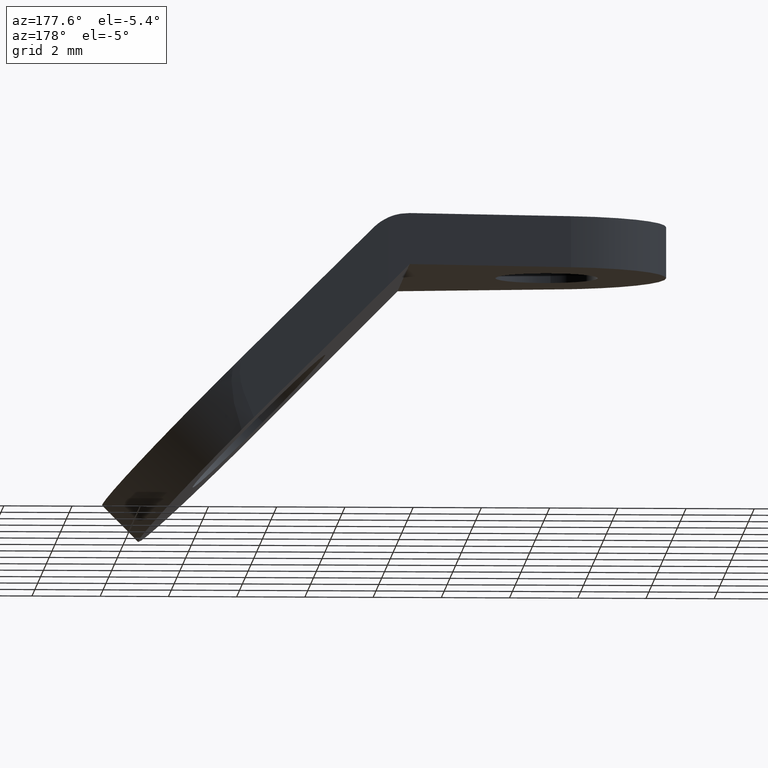
[diagram: clean part render]
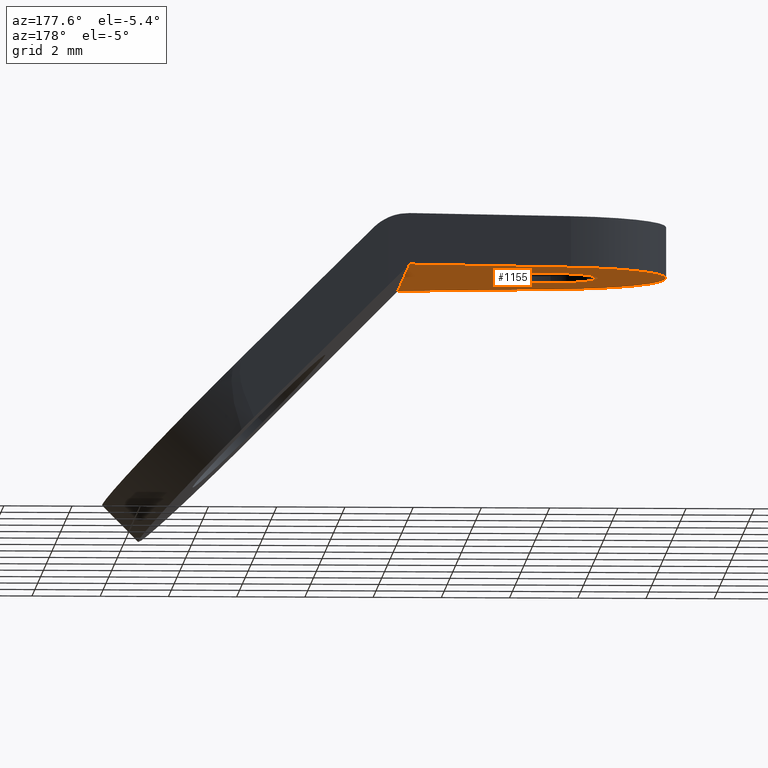
[diagram: same view with one face highlighted and labeled with its STEP entity id]
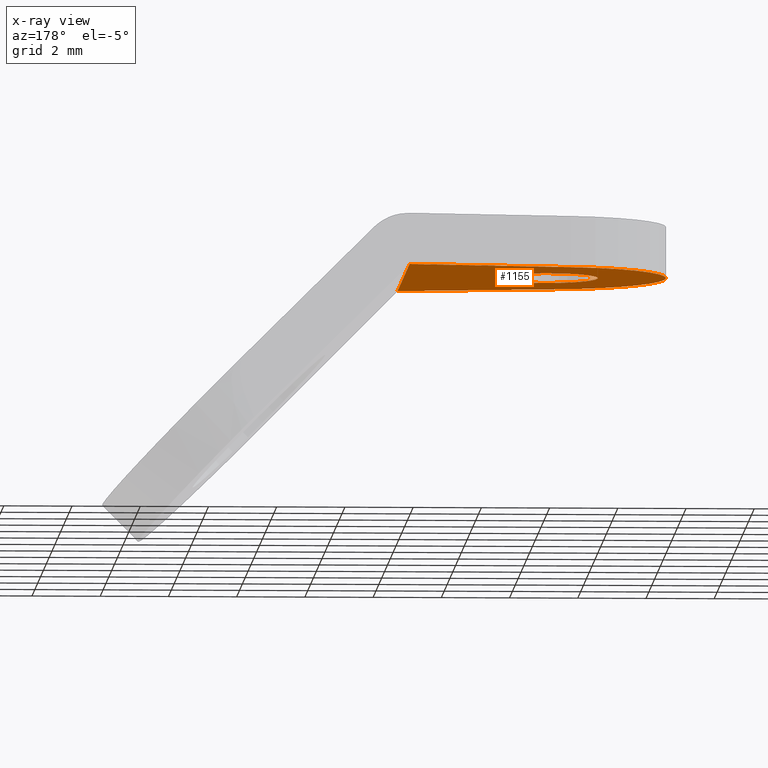
[diagram: x-ray of the same camera — body ghosted, the highlighted face saturated]
A machine part, auxiliary view. The second image highlights one B-rep face of the part: STEP entity #1155.
The next image is the same camera in x-ray: the body ghosted, the highlighted face saturated — about 0% of this face is hidden behind the body in this view.
In plain terms, the highlighted face is a freeform B-spline surface patch.
Its self-contained STEP definition (entity closure, byte-faithful):
#290=CARTESIAN_POINT('',(3.591572396663350,1.497202222870765,-1.499999999999946));
#291=VERTEX_POINT('',#290);
#297=CARTESIAN_POINT('',(5.0,0.0,-1.499999999999946));
#298=VERTEX_POINT('',#297);
#299=CARTESIAN_POINT('',(5.0,0.0,-1.499999999999946));
#300=CARTESIAN_POINT('',(5.0,1.411059879606823,-1.499999999999947));
#301=CARTESIAN_POINT('',(3.591572396663350,1.497202222870765,-1.499999999999946));
#309=(BOUNDED_CURVE()B_SPLINE_CURVE(2,(#299,#300,#301),.UNSPECIFIED.,.F.,.U.)B_SPLINE_CURVE_WITH_KNOTS((3,3),(0.500000000000000,0.739333057352074),.UNSPECIFIED.)CURVE()GEOMETRIC_REPRESENTATION_ITEM()RATIONAL_B_SPLINE_CURVE((1.0,0.719603881854746,0.976072245512347))REPRESENTATION_ITEM(''));
#310=EDGE_CURVE('',#298,#291,#309,.T.);
#312=CARTESIAN_POINT('',(3.322948647998651,-1.489514289543573,-1.499999999999946));
#313=VERTEX_POINT('',#312);
#314=CARTESIAN_POINT('',(3.322948647998651,-1.489514289543572,-1.499999999999946));
#315=CARTESIAN_POINT('',(3.411163820505752,-1.500000000000000,-1.499999999999946));
#316=CARTESIAN_POINT('',(3.500000000000000,-1.500000000000000,-1.499999999999946));
#317=CARTESIAN_POINT('',(5.000000000000001,-1.500000000000000,-1.499999999999946));
#318=CARTESIAN_POINT('',(5.0,0.0,-1.499999999999946));
#326=(BOUNDED_CURVE()B_SPLINE_CURVE(2,(#314,#315,#316,#317,#318),.UNSPECIFIED.,.F.,.U.)B_SPLINE_CURVE_WITH_KNOTS((3,2,3),(0.229562473511965,0.250000000000000,0.500000000000000),.UNSPECIFIED.)CURVE()GEOMETRIC_REPRESENTATION_ITEM()RATIONAL_B_SPLINE_CURVE((0.956026754180675,0.976055948329338,1.0,0.707106781186548,1.0))REPRESENTATION_ITEM(''));
#327=EDGE_CURVE('',#313,#298,#326,.T.);
#371=CARTESIAN_POINT('',(2.0,0.0,-1.499999999999946));
#372=VERTEX_POINT('',#371);
#373=CARTESIAN_POINT('',(2.0,0.0,-1.499999999999946));
#374=CARTESIAN_POINT('',(2.0,-1.332261788897848,-1.499999999999947));
#375=CARTESIAN_POINT('',(3.322948647998651,-1.489514289543573,-1.499999999999945));
#383=(BOUNDED_CURVE()B_SPLINE_CURVE(2,(#373,#374,#375),.UNSPECIFIED.,.F.,.U.)B_SPLINE_CURVE_WITH_KNOTS((3,3),(0.0,0.229562473511965),.UNSPECIFIED.)CURVE()GEOMETRIC_REPRESENTATION_ITEM()RATIONAL_B_SPLINE_CURVE((1.0,0.731050832857210,0.956026754180675))REPRESENTATION_ITEM(''));
#384=EDGE_CURVE('',#372,#313,#383,.T.);
#386=CARTESIAN_POINT('',(3.591572396663350,1.497202222870765,-1.499999999999946));
#387=CARTESIAN_POINT('',(3.545828731151959,1.500000000000000,-1.499999999999946));
#388=CARTESIAN_POINT('',(3.500000000000000,1.500000000000000,-1.499999999999946));
#389=CARTESIAN_POINT('',(2.000000000000000,1.500000000000000,-1.499999999999946));
#390=CARTESIAN_POINT('',(2.0,0.0,-1.499999999999946));
#398=(BOUNDED_CURVE()B_SPLINE_CURVE(2,(#386,#387,#388,#389,#390),.UNSPECIFIED.,.F.,.U.)B_SPLINE_CURVE_WITH_KNOTS((3,2,3),(0.739333057352074,0.750000000000000,1.0),.UNSPECIFIED.)CURVE()GEOMETRIC_REPRESENTATION_ITEM()RATIONAL_B_SPLINE_CURVE((0.976072245512348,0.987502899331802,1.0,0.707106781186548,1.0))REPRESENTATION_ITEM(''));
#399=EDGE_CURVE('',#291,#372,#398,.T.);
#1054=CARTESIAN_POINT('',(2.930047951796130,3.453281322138420,-1.499999999999946));
#1055=VERTEX_POINT('',#1054);
#1061=CARTESIAN_POINT('',(2.930046000000000,-3.453281000000000,-1.499999999999946));
#1062=VERTEX_POINT('',#1061);
#1063=CARTESIAN_POINT('',(2.930047951796130,3.453281322138419,-1.499999999999946));
#1064=CARTESIAN_POINT('',(0.000003271817115,2.969685594343231,-1.499999999999947));
#1065=CARTESIAN_POINT('',(0.000002432583590,0.000000989100716,-1.499999999999946));
#1066=CARTESIAN_POINT('',(0.000001593350063,-2.969683616141795,-1.499999999999947));
#1067=CARTESIAN_POINT('',(2.930046000000000,-3.453281000000000,-1.499999999999946));
#1075=(BOUNDED_CURVE()B_SPLINE_CURVE(2,(#1063,#1064,#1065,#1066,#1067),.UNSPECIFIED.,.F.,.U.)B_SPLINE_CURVE_WITH_KNOTS((3,2,3),(0.0,0.500000000000000,1.0),.UNSPECIFIED.)CURVE()GEOMETRIC_REPRESENTATION_ITEM()RATIONAL_B_SPLINE_CURVE((1.0,0.762510464254694,1.0,0.762510464254694,1.0))REPRESENTATION_ITEM(''));
#1076=EDGE_CURVE('',#1055,#1062,#1075,.T.);
#1091=CARTESIAN_POINT('',(7.692386999999870,-4.239292140935910,-1.500000000000000));
#1092=VERTEX_POINT('',#1091);
#1102=CARTESIAN_POINT('',(7.692386999999870,-4.239292140935910,-1.500000000000000));
#1103=CARTESIAN_POINT('',(2.930046000000000,-3.453281000000000,-1.499999999999946));
#1104=QUASI_UNIFORM_CURVE('',1,(#1102,#1103),.UNSPECIFIED.,.F.,.U.);
#1105=EDGE_CURVE('',#1092,#1062,#1104,.T.);
#1117=CARTESIAN_POINT('',(7.692386999999870,4.239292140935910,-1.500000000000000));
#1118=VERTEX_POINT('',#1117);
#1124=CARTESIAN_POINT('',(2.930047951796130,3.453281322138420,-1.499999999999946));
#1125=CARTESIAN_POINT('',(7.692386999999870,4.239292140935910,-1.500000000000000));
#1126=QUASI_UNIFORM_CURVE('',1,(#1124,#1125),.UNSPECIFIED.,.F.,.U.);
#1127=EDGE_CURVE('',#1055,#1118,#1126,.T.);
#1134=CARTESIAN_POINT('',(-0.384232161649571,4.662797409382265,-1.500000000000000));
#1135=CARTESIAN_POINT('',(8.076621800558817,4.662797409382265,-1.500000000000000));
#1136=CARTESIAN_POINT('',(-0.384232161649571,-4.662797636795617,-1.500000000000000));
#1137=CARTESIAN_POINT('',(8.076621800558817,-4.662797636795617,-1.500000000000000));
#1138=B_SPLINE_SURFACE_WITH_KNOTS('',1,1,((#1134,#1136),(#1135,#1137)),.UNSPECIFIED.,.F.,.F.,.U.,(2,2),(2,2),(0.0,8.460853962208388),(0.0,9.325595046177883),.UNSPECIFIED.);
#1139=CARTESIAN_POINT('',(7.692386999999870,-4.239292140935910,-1.500000000000000));
#1140=CARTESIAN_POINT('',(7.692386999999870,4.239292140935910,-1.500000000000000));
#1141=QUASI_UNIFORM_CURVE('',1,(#1139,#1140),.UNSPECIFIED.,.F.,.U.);
#1142=EDGE_CURVE('',#1092,#1118,#1141,.T.);
#1143=ORIENTED_EDGE('',*,*,#1142,.F.);
#1144=ORIENTED_EDGE('',*,*,#1105,.T.);
#1145=ORIENTED_EDGE('',*,*,#1076,.F.);
#1146=ORIENTED_EDGE('',*,*,#1127,.T.);
#1147=EDGE_LOOP('',(#1143,#1144,#1145,#1146));
#1148=FACE_OUTER_BOUND('',#1147,.T.);
#1149=ORIENTED_EDGE('',*,*,#310,.T.);
#1150=ORIENTED_EDGE('',*,*,#399,.T.);
#1151=ORIENTED_EDGE('',*,*,#384,.T.);
#1152=ORIENTED_EDGE('',*,*,#327,.T.);
#1153=EDGE_LOOP('',(#1149,#1150,#1151,#1152));
#1154=FACE_BOUND('',#1153,.T.);
#1155=ADVANCED_FACE('',(#1148,#1154),#1138,.T.);